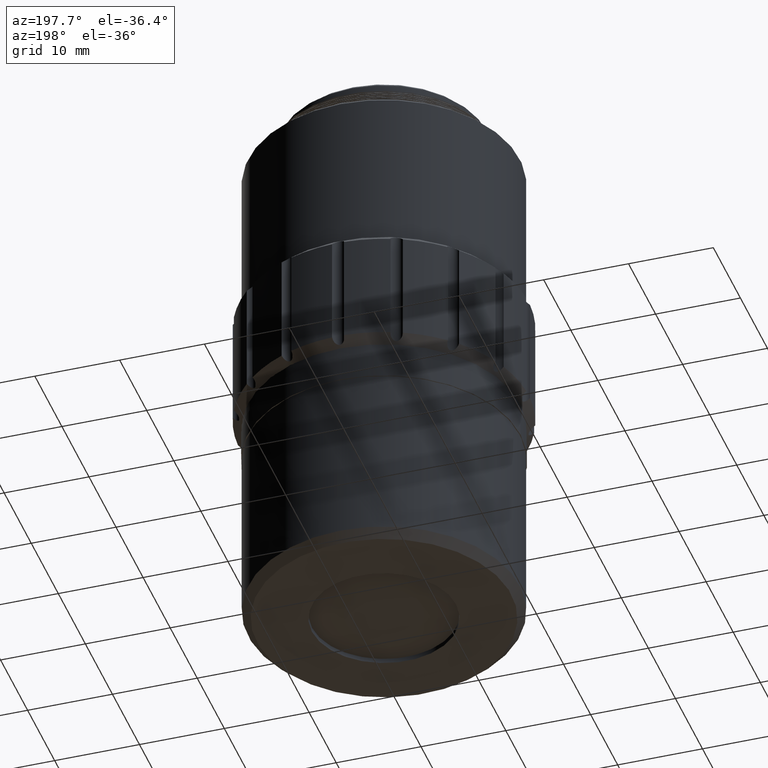
[diagram: clean part render]
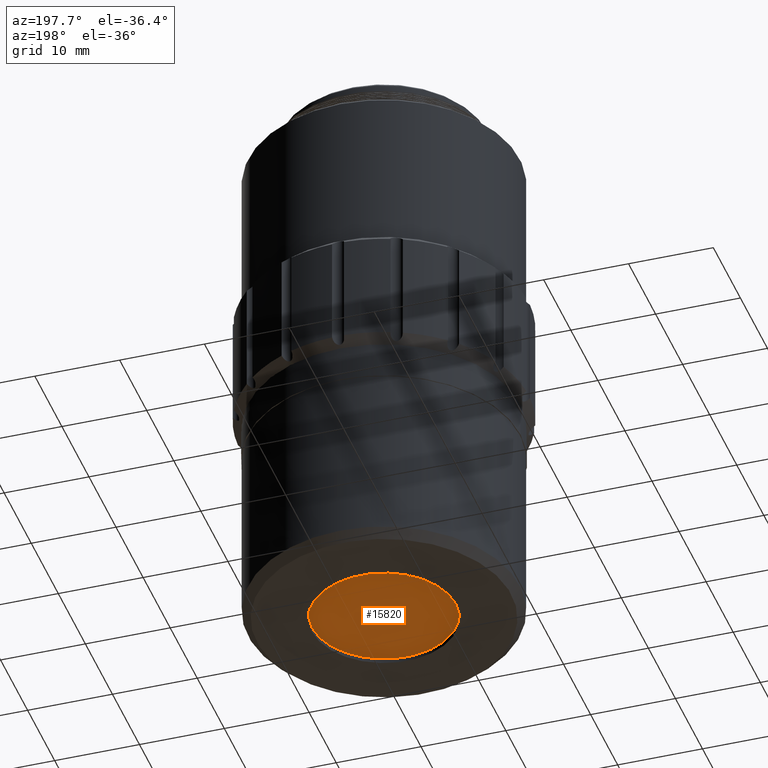
[diagram: same view with one face highlighted and labeled with its STEP entity id]
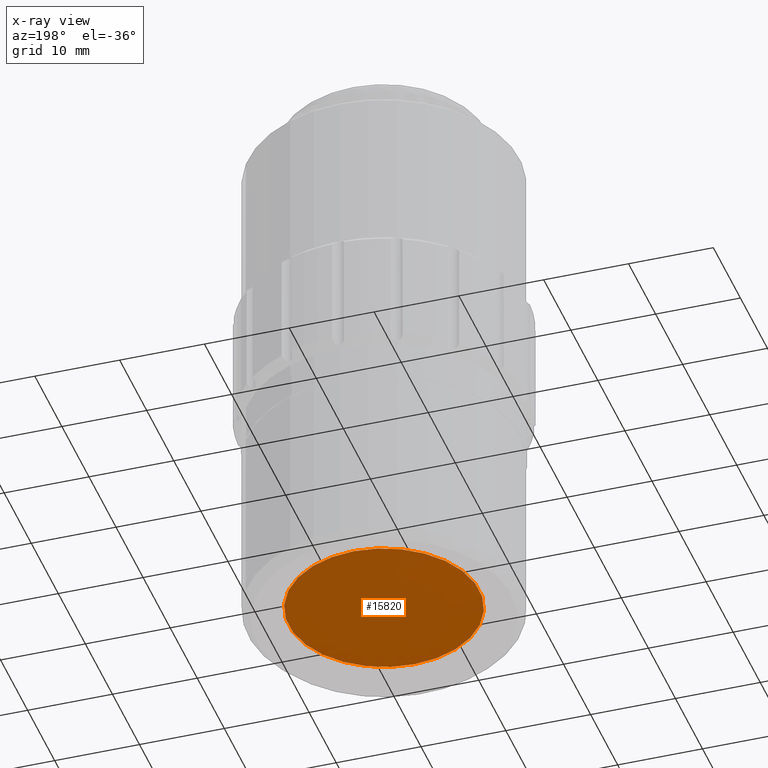
[diagram: x-ray of the same camera — body ghosted, the highlighted face saturated]
A machine part, auxiliary view. The second image highlights one B-rep face of the part: STEP entity #15820.
The next image is the same camera in x-ray: the body ghosted, the highlighted face saturated — about 0% of this face is hidden behind the body in this view.
In plain terms, the highlighted spherical surface has radius 31.2095 mm.
Its self-contained STEP definition (entity closure, byte-faithful):
#809 = DIRECTION ( 'NONE',  ( 0.000000000000000000, 0.000000000000000000, -1.000000000000000000 ) ) ;
#3457 = DIRECTION ( 'NONE',  ( 0.000000000000000000, -1.000000000000000000, 0.000000000000000000 ) ) ;
#3633 = CARTESIAN_POINT ( 'NONE',  ( -122.6630341068842824, 22.01530283243863195, -3.347246695856995302 ) ) ;
#4391 = EDGE_CURVE ( 'NONE', #10411, #10411, #10723, .T. ) ;
#4962 = SPHERICAL_SURFACE ( 'NONE', #6726, 31.20951493132240273 ) ;
#6726 = AXIS2_PLACEMENT_3D ( 'NONE', #3633, #809, #3457 ) ;
#8908 = CARTESIAN_POINT ( 'NONE',  ( -122.6630341068842824, 33.24796033898384451, -32.46530342341162623 ) ) ;
#10411 = VERTEX_POINT ( 'NONE', #8908 ) ;
#10609 = DIRECTION ( 'NONE',  ( -0.000000000000000000, -1.318609258053554868E-16, 1.000000000000000000 ) ) ;
#10723 = CIRCLE ( 'NONE', #12967, 11.23265750654520900 ) ;
#10972 = ORIENTED_EDGE ( 'NONE', *, *, #4391, .F. ) ;
#11311 = EDGE_LOOP ( 'NONE', ( #10972 ) ) ;
#11752 = DIRECTION ( 'NONE',  ( 0.000000000000000000, 1.000000000000000000, 0.000000000000000000 ) ) ;
#12967 = AXIS2_PLACEMENT_3D ( 'NONE', #13159, #10609, #11752 ) ;
#13159 = CARTESIAN_POINT ( 'NONE',  ( -122.6630341068842824, 22.01530283243863195, -32.46530342341162623 ) ) ;
#15820 = ADVANCED_FACE ( 'NONE', ( #16654 ), #4962, .T. ) ;
#16654 = FACE_OUTER_BOUND ( 'NONE', #11311, .T. ) ;